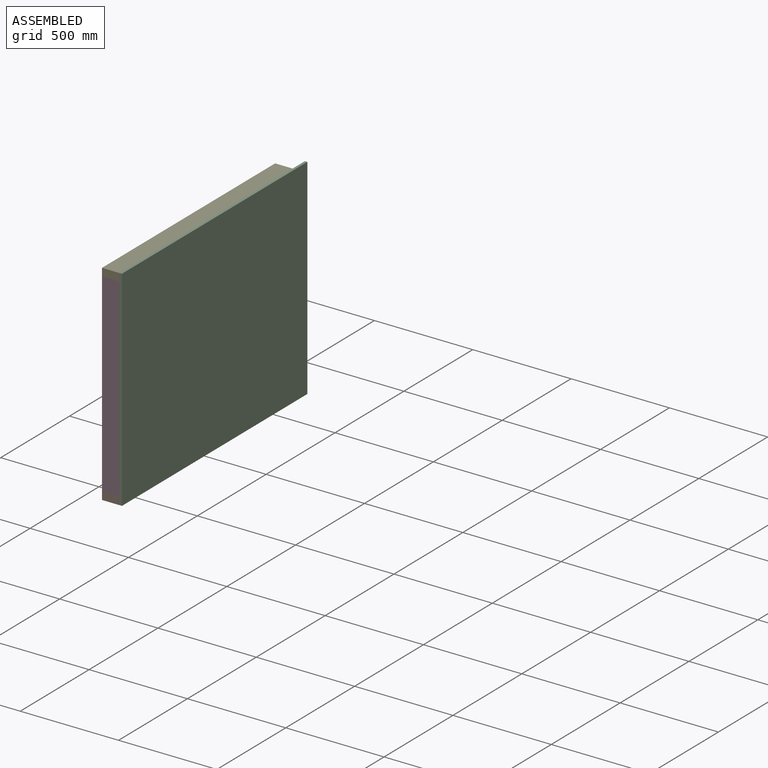
[diagram: assembled view]
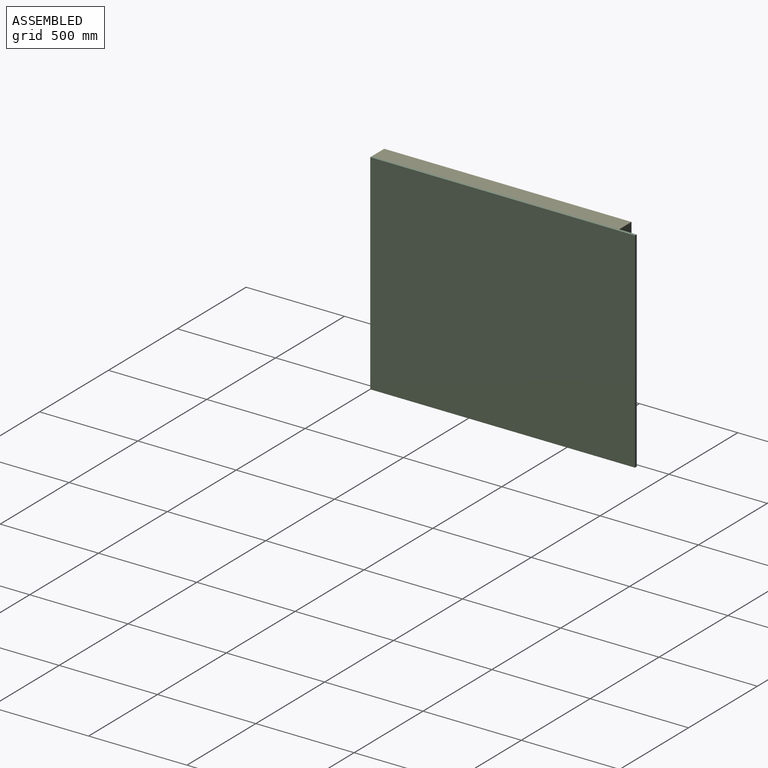
[diagram: assembled view, second angle]
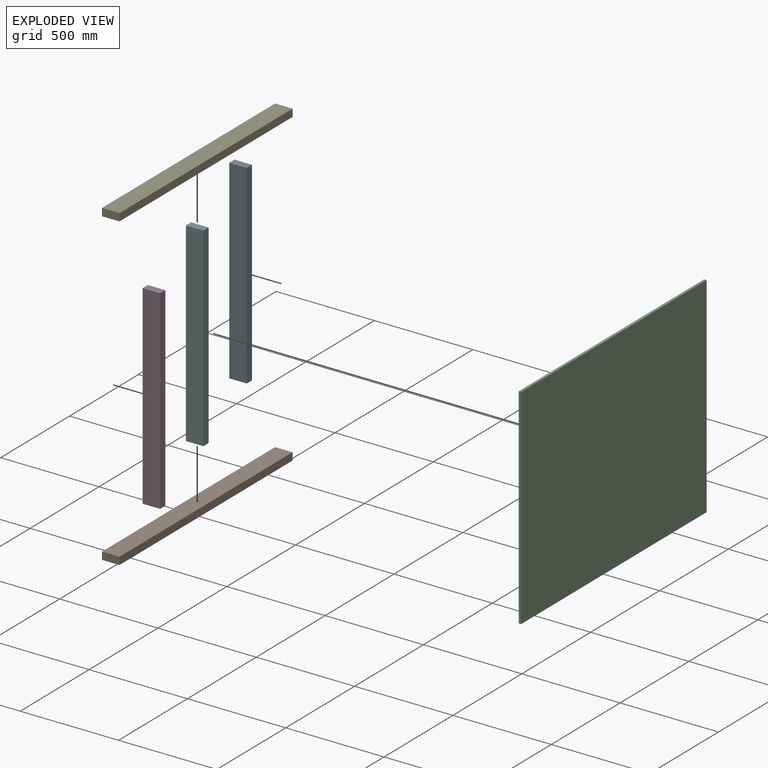
[diagram: exploded view]
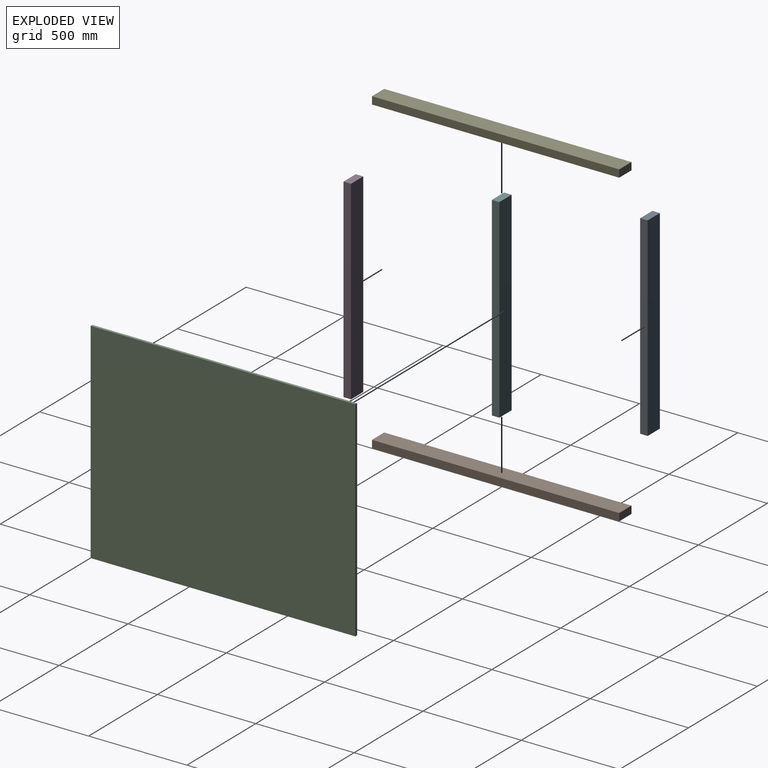
[diagram: exploded view, second angle]
ASSEMBLY  parts=6 mates=3
PART A: 6 faces, bbox 88.9x990.6x38.1 mm
  f0: plane 990.6x38.1mm, normal (1,0,0), area 37741.9mm2, adj f1,f3,f4,f5
  f1: plane 88.9x38.1mm, normal (0,1,0), area 3387.1mm2, adj f0,f2,f4,f5
  f2: plane 990.6x38.1mm, normal (-1,0,0), area 37741.9mm2, adj f1,f3,f4,f5
  f3: plane 88.9x38.1mm, normal (0,-1,0), area 3387.1mm2, adj f0,f2,f4,f5
  f4: plane 990.6x88.9mm, normal (0,0,1), area 88064.3mm2, adj f0,f1,f2,f3
  f5: plane 990.6x88.9mm, normal (0,0,-1), area 88064.3mm2, adj f0,f1,f2,f3
PART B: 6 faces, bbox 88.9x1257.3x38.1 mm
  f0: plane 1257.3x38.1mm, normal (1,0,0), area 47903.1mm2, adj f1,f3,f4,f5
  f1: plane 88.9x38.1mm, normal (0,1,0), area 3387.1mm2, adj f0,f2,f4,f5
  f2: plane 1257.3x38.1mm, normal (-1,0,0), area 47903.1mm2, adj f1,f3,f4,f5
  f3: plane 88.9x38.1mm, normal (0,-1,0), area 3387.1mm2, adj f0,f2,f4,f5
  f4: plane 1257.3x88.9mm, normal (0,0,1), area 111774mm2, adj f0,f1,f2,f3
  f5: plane 1257.3x88.9mm, normal (0,0,-1), area 111774mm2, adj f0,f1,f2,f3
PART C: 6 faces, bbox 1066.8x1346.2x12.7 mm
  f0: plane 1346.2x12.7mm, normal (1,0,0), area 17096.7mm2, adj f1,f3,f4,f5
  f1: plane 1066.8x12.7mm, normal (0,1,0), area 13548.4mm2, adj f0,f2,f4,f5
  f2: plane 1346.2x12.7mm, normal (-1,0,0), area 17096.7mm2, adj f1,f3,f4,f5
  f3: plane 1066.8x12.7mm, normal (0,-1,0), area 13548.4mm2, adj f0,f2,f4,f5
  f4: plane 1346.2x1066.8mm, normal (0,0,1), area 1436126.2mm2, adj f0,f1,f2,f3
  f5: plane 1346.2x1066.8mm, normal (0,0,-1), area 1436126.2mm2, adj f0,f1,f2,f3
PART D: same geometry as A
PART E: same geometry as B
PART F: same geometry as A
PLACE A rot(axis=(-1,0,0),90deg) t=(0,590.55,533.4)mm
PLACE B at identity fixed
PLACE C rot(axis=(0,1,0),90deg) t=(44.45,44.45,533.4)mm
PLACE D rot(axis=(-1,0,0),90deg) t=(0,-628.65,533.4)mm
PLACE E t=(0,0,1028.7)mm
PLACE F rot(axis=(-1,0,0),90deg) t=(0,-19.05,533.4)mm
MATE fastened C.f5 <-> E.f0  axis (-1,0,0) through (44.45,-628.65,1066.8)mm
MATE fastened B.f4 <-> A.f1  axis (0,0,1) through (44.45,628.65,38.1)mm
MATE fastened E.f5 <-> A.f3  axis (0,0,-1) through (44.45,628.65,1028.7)mm
